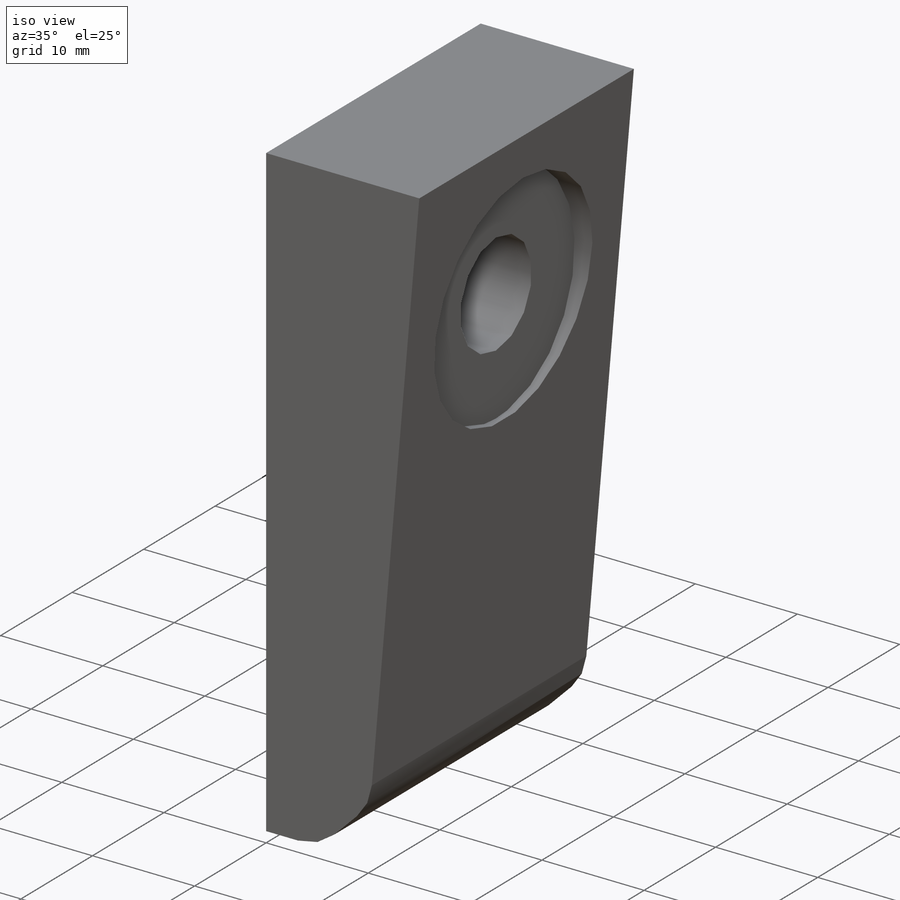
[diagram: iso view]
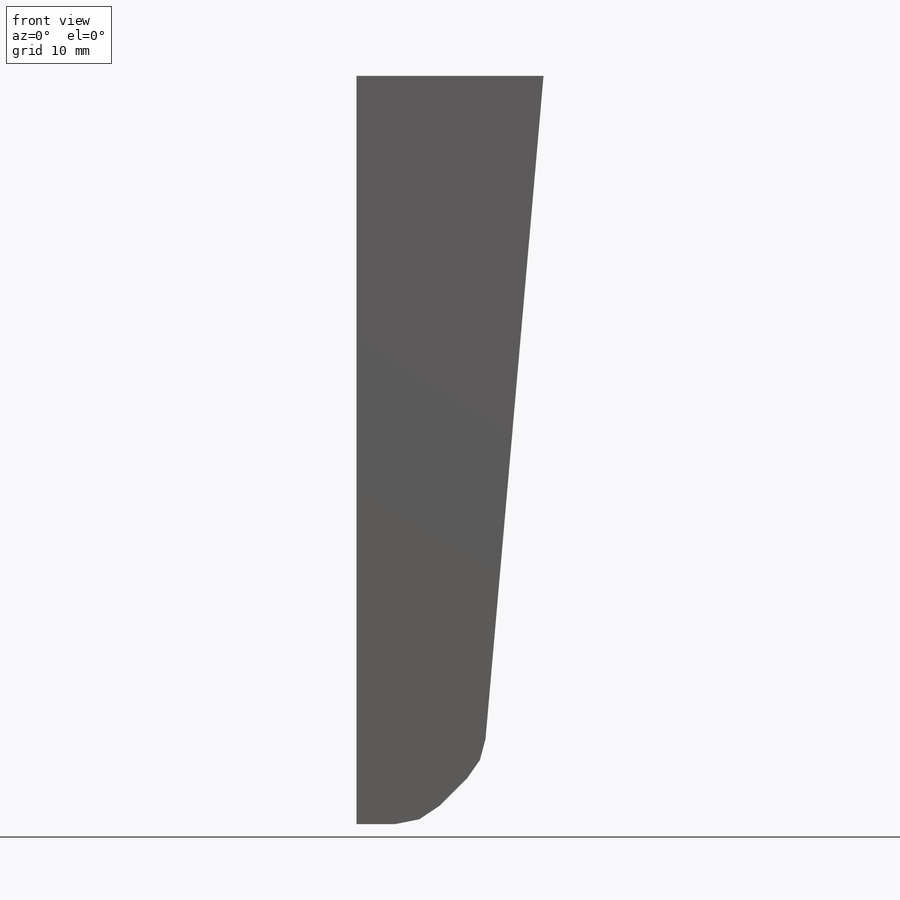
[diagram: front view]
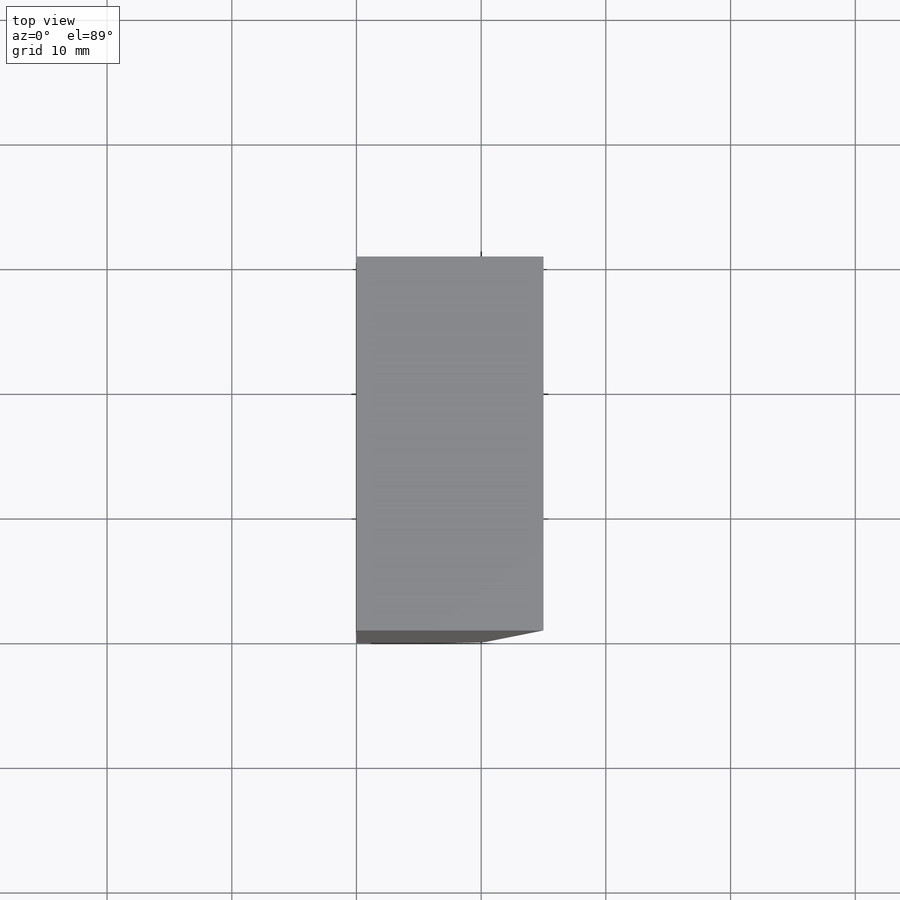
[diagram: top view]
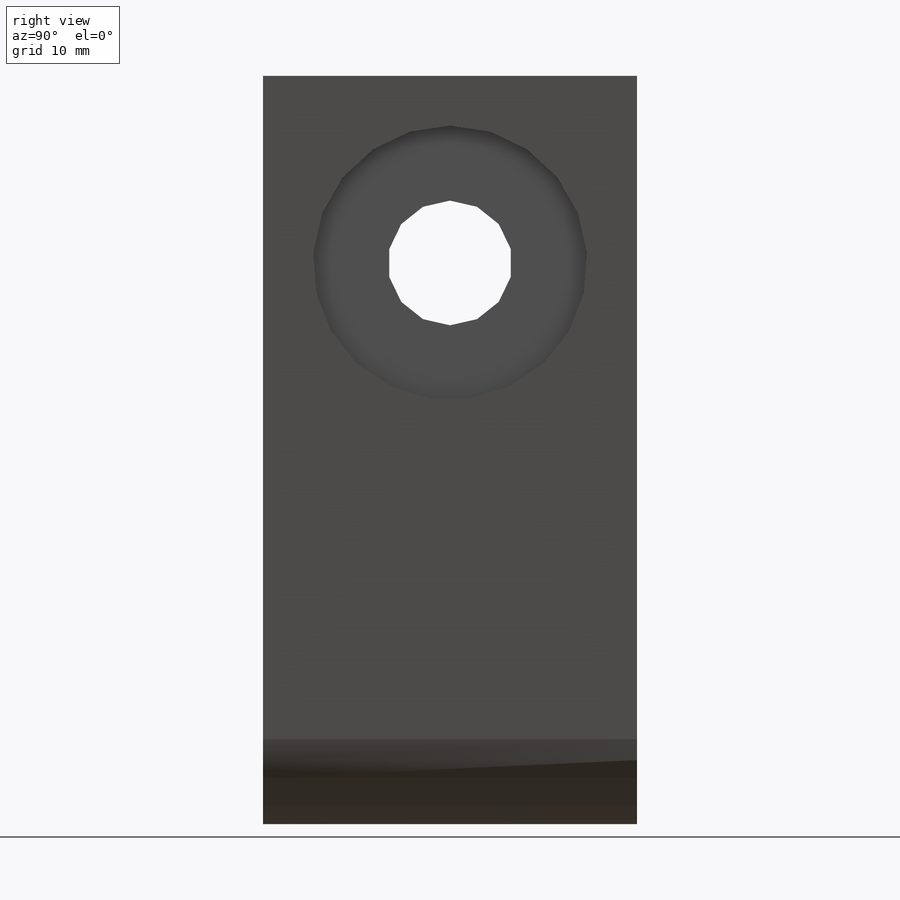
[diagram: right view]
SOLIDWORKS PART (.sldprt)
format: sldprt  version: not decoded by parser v0  size: 239,616 bytes
history: native  units: mm
features: plane x3, sketch x3, cut_extrude x2, material x1, extrude x1 (+10 scaffold rows collapsed)
feature tree (20):
  scaffold x10  (default folders/planes/origin — collapsed)
  material  "Материал <не указан>"
  plane  "Спереди"
  plane  "Сверху"
  plane  "Справа"
  sketch  "Эскиз1"  dims[c1.D6=5.0mm c1.D1=5.0mm c2.D1=20.0deg c3.D1=60.0mm c3.D2=45.0deg c4.D2=5.0mm c5.D2=45.0deg c5.D3=~56.833311mm c6.D3=40.0deg c6.D4=15.0mm c6.D5=5.0mm]
  extrude  "Бобышка-Вытянуть1"  Depth=30mm
  sketch  "Эскиз3"  dims[D1=15.0mm D2=15.0mm]
  cut_extrude  "Вырез-Вытянуть2"  Depth=21mm
  sketch  "Эскиз5"  dims[D1=10.0mm]
  cut_extrude  "Вырез-Вытянуть3"  Depth=3mm
decode coverage: 6 of 6 modeling features carry decoded parameters
note: ~ marks probable driven/reference dimensions
note: suppression state not decoded; provenance and decode notes live in map.json
